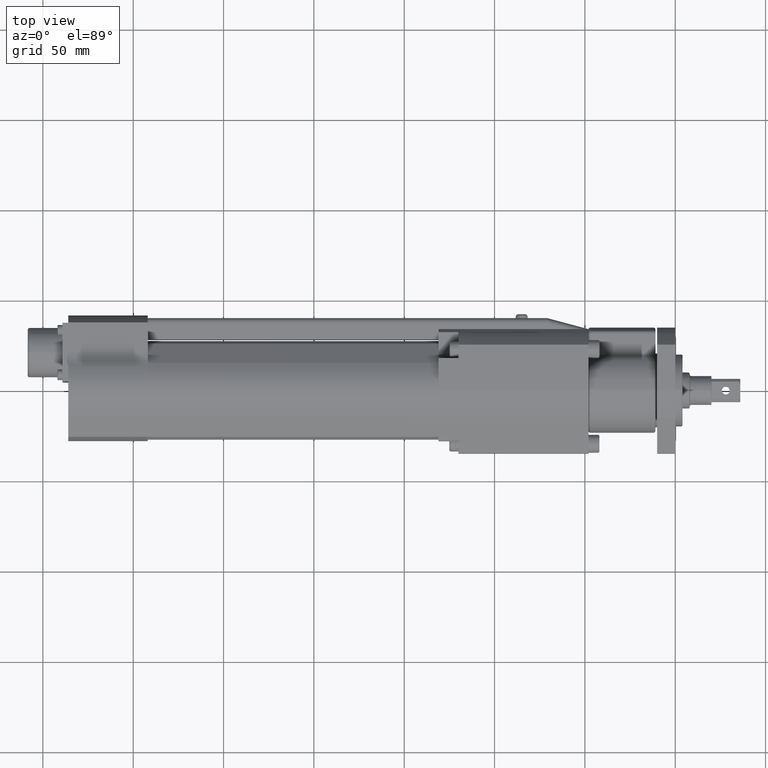
[diagram: clean part render]
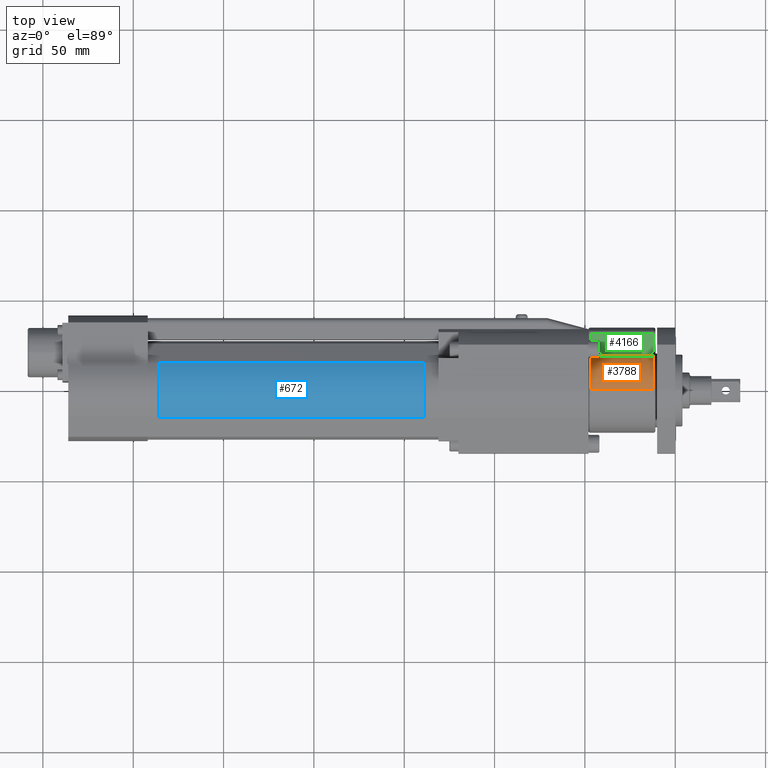
[diagram: same view with three faces highlighted in distinct colors, each labeled with its STEP entity id]
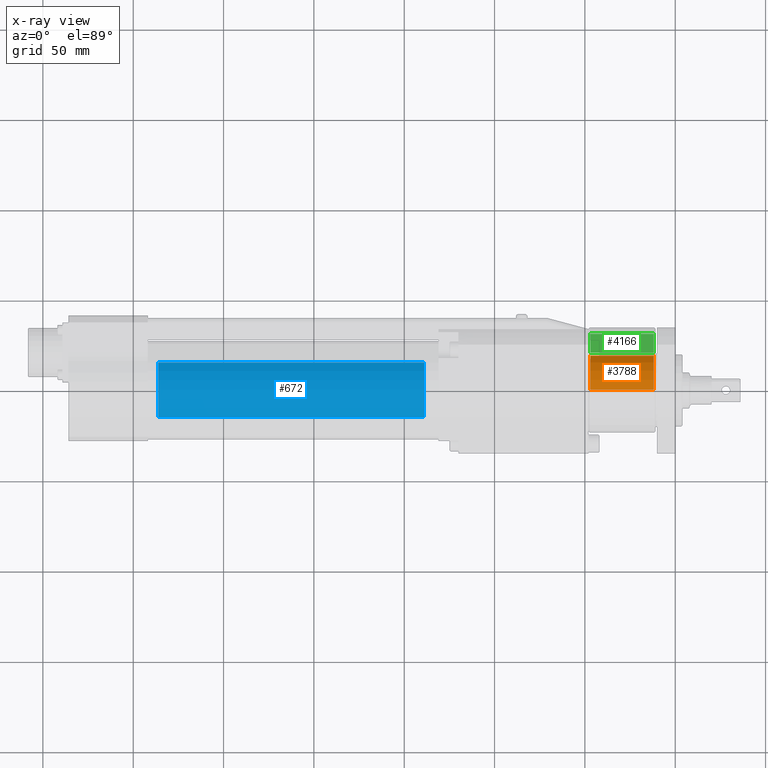
[diagram: x-ray of the same camera — body ghosted, the three highlighted faces saturated]
A machine part, top view with three faces highlighted in distinct colors.
The next image is the same camera in x-ray (body ghosted, the three faces saturated) — at least one of them is partly hidden behind the body in this view.
Their STEP definitions:

[orange] entity #3788 — the highlighted cylindrical surface (partial cylindrical patch) has radius 23.5 mm, axis along (1, -0, -0).
#776 = ORIENTED_EDGE ( 'NONE', *, *, #4797, .T. ) ;
#1024 = ORIENTED_EDGE ( 'NONE', *, *, #6383, .T. ) ;
#1138 = ORIENTED_EDGE ( 'NONE', *, *, #5161, .T. ) ;
#1950 = CIRCLE ( 'NONE', #7368, 23.50000000000000000 ) ;
#2595 = EDGE_CURVE ( 'NONE', #7331, #6555, #1950, .T. ) ;
#2702 = CARTESIAN_POINT ( 'NONE',  ( -47.00000000000000000, 0.0000000000000000000, 0.0000000000000000000 ) ) ;
#2726 = EDGE_LOOP ( 'NONE', ( #5935, #1024, #776, #1138 ) ) ;
#3408 = CARTESIAN_POINT ( 'NONE',  ( -47.00000000000000000, 19.00421097025804300, 13.82352941176470300 ) ) ;
#3433 = DIRECTION ( 'NONE',  ( 0.0000000000000000000, 8.881784197001252300E-016, 1.000000000000000000 ) ) ;
#3527 = DIRECTION ( 'NONE',  ( 0.0000000000000000000, 0.0000000000000000000, -1.000000000000000000 ) ) ;
#3757 = VECTOR ( 'NONE', #7255, 1000.000000000000000 ) ;
#3788 = ADVANCED_FACE ( 'NONE', ( #5408 ), #8349, .T. ) ;
#4797 = EDGE_CURVE ( 'NONE', #6491, #6052, #6250, .T. ) ;
#4864 = DIRECTION ( 'NONE',  ( 0.0000000000000000000, 0.0000000000000000000, 1.000000000000000000 ) ) ;
#5013 = VECTOR ( 'NONE', #6713, 1000.000000000000000 ) ;
#5161 = EDGE_CURVE ( 'NONE', #6052, #7331, #6925, .T. ) ;
#5263 = CARTESIAN_POINT ( 'NONE',  ( -11.99999999999999600, 2.877919977996280300E-015, 23.50000000000000000 ) ) ;
#5288 = CARTESIAN_POINT ( 'NONE',  ( -48.00000000000000000, 19.00421097025804300, 13.82352941176470300 ) ) ;
#5408 = FACE_OUTER_BOUND ( 'NONE', #2726, .T. ) ;
#5935 = ORIENTED_EDGE ( 'NONE', *, *, #2595, .T. ) ;
#6052 = VERTEX_POINT ( 'NONE', #6334 ) ;
#6250 = CIRCLE ( 'NONE', #6707, 23.50000000000000000 ) ;
#6334 = CARTESIAN_POINT ( 'NONE',  ( -11.99999999999999600, 19.00421097025804300, 13.82352941176470300 ) ) ;
#6383 = EDGE_CURVE ( 'NONE', #6555, #6491, #7600, .T. ) ;
#6385 = CARTESIAN_POINT ( 'NONE',  ( -48.00000000000000000, 0.0000000000000000000, 0.0000000000000000000 ) ) ;
#6491 = VERTEX_POINT ( 'NONE', #5263 ) ;
#6555 = VERTEX_POINT ( 'NONE', #6809 ) ;
#6707 = AXIS2_PLACEMENT_3D ( 'NONE', #9135, #9187, #4864 ) ;
#6713 = DIRECTION ( 'NONE',  ( -1.000000000000000000, 0.0000000000000000000, 0.0000000000000000000 ) ) ;
#6809 = CARTESIAN_POINT ( 'NONE',  ( -47.00000000000000000, 2.877919977996280300E-015, 23.50000000000000000 ) ) ;
#6925 = LINE ( 'NONE', #5288, #5013 ) ;
#7255 = DIRECTION ( 'NONE',  ( 1.000000000000000000, -0.0000000000000000000, -0.0000000000000000000 ) ) ;
#7331 = VERTEX_POINT ( 'NONE', #3408 ) ;
#7368 = AXIS2_PLACEMENT_3D ( 'NONE', #2702, #7762, #3433 ) ;
#7430 = AXIS2_PLACEMENT_3D ( 'NONE', #6385, #7855, #3527 ) ;
#7600 = LINE ( 'NONE', #8009, #3757 ) ;
#7762 = DIRECTION ( 'NONE',  ( 1.000000000000000000, -0.0000000000000000000, -0.0000000000000000000 ) ) ;
#7855 = DIRECTION ( 'NONE',  ( 1.000000000000000000, -0.0000000000000000000, -0.0000000000000000000 ) ) ;
#8009 = CARTESIAN_POINT ( 'NONE',  ( -48.00000000000000000, 2.877919977996280300E-015, 23.50000000000000000 ) ) ;
#8349 = CYLINDRICAL_SURFACE ( 'NONE', #7430, 23.50000000000000000 ) ;
#9135 = CARTESIAN_POINT ( 'NONE',  ( -11.99999999999999600, 0.0000000000000000000, 0.0000000000000000000 ) ) ;
#9187 = DIRECTION ( 'NONE',  ( -1.000000000000000000, 0.0000000000000000000, 0.0000000000000000000 ) ) ;

[blue] entity #672 — the highlighted cylindrical surface (partial cylindrical patch) has radius 24.5 mm, axis along (1, -0, -0).
#125 = DIRECTION ( 'NONE',  ( -1.000000000000000000, 0.0000000000000000000, 0.0000000000000000000 ) ) ;
#127 = ORIENTED_EDGE ( 'NONE', *, *, #5010, .T. ) ;
#424 = LINE ( 'NONE', #2423, #1862 ) ;
#668 = VERTEX_POINT ( 'NONE', #2818 ) ;
#672 = ADVANCED_FACE ( 'NONE', ( #7265 ), #8716, .T. ) ;
#1093 = CIRCLE ( 'NONE', #5566, 24.50000000000000000 ) ;
#1569 = VERTEX_POINT ( 'NONE', #1766 ) ;
#1720 = DIRECTION ( 'NONE',  ( 1.000000000000000000, -0.0000000000000000000, -0.0000000000000000000 ) ) ;
#1766 = CARTESIAN_POINT ( 'NONE',  ( -286.0000000000000600, -15.08370614547866000, 19.30626346336466500 ) ) ;
#1862 = VECTOR ( 'NONE', #1720, 1000.000000000000000 ) ;
#2029 = LINE ( 'NONE', #8192, #8998 ) ;
#2423 = CARTESIAN_POINT ( 'NONE',  ( -286.0000000000000600, 15.08370614547865600, 19.30626346336466500 ) ) ;
#2700 = CARTESIAN_POINT ( 'NONE',  ( -286.0000000000000600, 0.0000000000000000000, 0.0000000000000000000 ) ) ;
#2705 = ORIENTED_EDGE ( 'NONE', *, *, #4620, .F. ) ;
#2818 = CARTESIAN_POINT ( 'NONE',  ( -286.0000000000000600, 15.08370614547865600, 19.30626346336466500 ) ) ;
#2848 = DIRECTION ( 'NONE',  ( 0.0000000000000000000, 0.0000000000000000000, -1.000000000000000000 ) ) ;
#3039 = ORIENTED_EDGE ( 'NONE', *, *, #8062, .T. ) ;
#3432 = DIRECTION ( 'NONE',  ( 0.0000000000000000000, 0.0000000000000000000, 1.000000000000000000 ) ) ;
#4283 = EDGE_CURVE ( 'NONE', #1569, #668, #5039, .T. ) ;
#4289 = DIRECTION ( 'NONE',  ( 1.000000000000000000, -0.0000000000000000000, -0.0000000000000000000 ) ) ;
#4388 = CARTESIAN_POINT ( 'NONE',  ( -139.0000000000000000, 0.0000000000000000000, 0.0000000000000000000 ) ) ;
#4620 = EDGE_CURVE ( 'NONE', #668, #5814, #424, .T. ) ;
#5010 = EDGE_CURVE ( 'NONE', #8427, #5814, #1093, .T. ) ;
#5039 = CIRCLE ( 'NONE', #5145, 24.50000000000000000 ) ;
#5120 = DIRECTION ( 'NONE',  ( 0.0000000000000000000, 0.0000000000000000000, 1.000000000000000000 ) ) ;
#5145 = AXIS2_PLACEMENT_3D ( 'NONE', #2700, #7761, #3432 ) ;
#5149 = AXIS2_PLACEMENT_3D ( 'NONE', #7903, #4289, #2848 ) ;
#5566 = AXIS2_PLACEMENT_3D ( 'NONE', #4388, #125, #5120 ) ;
#5814 = VERTEX_POINT ( 'NONE', #7777 ) ;
#6305 = EDGE_LOOP ( 'NONE', ( #127, #2705, #8627, #3039 ) ) ;
#7265 = FACE_OUTER_BOUND ( 'NONE', #6305, .T. ) ;
#7315 = CARTESIAN_POINT ( 'NONE',  ( -139.0000000000000000, -15.08370614547866000, 19.30626346336466500 ) ) ;
#7761 = DIRECTION ( 'NONE',  ( -1.000000000000000000, 0.0000000000000000000, 0.0000000000000000000 ) ) ;
#7777 = CARTESIAN_POINT ( 'NONE',  ( -139.0000000000000000, 15.08370614547865600, 19.30626346336466500 ) ) ;
#7903 = CARTESIAN_POINT ( 'NONE',  ( -286.0000000000000600, 0.0000000000000000000, 0.0000000000000000000 ) ) ;
#8062 = EDGE_CURVE ( 'NONE', #1569, #8427, #2029, .T. ) ;
#8160 = DIRECTION ( 'NONE',  ( 1.000000000000000000, -0.0000000000000000000, -0.0000000000000000000 ) ) ;
#8192 = CARTESIAN_POINT ( 'NONE',  ( -286.0000000000000600, -15.08370614547866000, 19.30626346336466500 ) ) ;
#8427 = VERTEX_POINT ( 'NONE', #7315 ) ;
#8627 = ORIENTED_EDGE ( 'NONE', *, *, #4283, .F. ) ;
#8716 = CYLINDRICAL_SURFACE ( 'NONE', #5149, 24.50000000000000000 ) ;
#8998 = VECTOR ( 'NONE', #8160, 1000.000000000000000 ) ;

[green] entity #4166 — the highlighted planar face has unit normal (0, -0, -1).
#428 = DIRECTION ( 'NONE',  ( 1.000000000000000000, -0.0000000000000000000, -0.0000000000000000000 ) ) ;
#659 = VERTEX_POINT ( 'NONE', #7141 ) ;
#723 = CARTESIAN_POINT ( 'NONE',  ( -47.00000000000000000, 20.62159062730128400, 13.00000000000000000 ) ) ;
#734 = LINE ( 'NONE', #6619, #5972 ) ;
#851 = DIRECTION ( 'NONE',  ( 0.0000000000000000000, 1.000000000000000000, -2.685458980225336700E-016 ) ) ;
#871 = LINE ( 'NONE', #4189, #6359 ) ;
#1011 = CARTESIAN_POINT ( 'NONE',  ( -47.00000000000000000, 31.11269837220810800, 12.99999999999999600 ) ) ;
#1044 = PLANE ( 'NONE',  #8214 ) ;
#1596 = DIRECTION ( 'NONE',  ( -1.000000000000000000, -0.0000000000000000000, -0.0000000000000000000 ) ) ;
#1746 = DIRECTION ( 'NONE',  ( 0.0000000000000000000, 1.000000000000000000, -2.685458980225336700E-016 ) ) ;
#1779 = EDGE_CURVE ( 'NONE', #5618, #6295, #871, .T. ) ;
#1823 = CARTESIAN_POINT ( 'NONE',  ( -10.99999999999999600, 20.62159062730128400, 13.00000000000000000 ) ) ;
#2568 = LINE ( 'NONE', #1823, #6172 ) ;
#2778 = DIRECTION ( 'NONE',  ( -0.0000000000000000000, -1.000000000000000000, 2.685458980225336700E-016 ) ) ;
#2816 = ORIENTED_EDGE ( 'NONE', *, *, #3487, .T. ) ;
#3129 = CARTESIAN_POINT ( 'NONE',  ( -11.99999999999999600, 31.11269837220810800, 12.99999999999999600 ) ) ;
#3487 = EDGE_CURVE ( 'NONE', #7734, #5618, #734, .T. ) ;
#4166 = ADVANCED_FACE ( 'NONE', ( #4168 ), #1044, .F. ) ;
#4168 = FACE_OUTER_BOUND ( 'NONE', #6608, .T. ) ;
#4189 = CARTESIAN_POINT ( 'NONE',  ( -47.00000000000000000, 20.62159062730128800, 13.00000000000000000 ) ) ;
#4541 = ORIENTED_EDGE ( 'NONE', *, *, #1779, .T. ) ;
#4583 = CARTESIAN_POINT ( 'NONE',  ( -48.00000000000000000, 32.49615361854385800, 12.99999999999999600 ) ) ;
#4832 = ORIENTED_EDGE ( 'NONE', *, *, #8168, .T. ) ;
#5618 = VERTEX_POINT ( 'NONE', #1011 ) ;
#5855 = LINE ( 'NONE', #6544, #9235 ) ;
#5972 = VECTOR ( 'NONE', #1596, 1000.000000000000000 ) ;
#6035 = DIRECTION ( 'NONE',  ( 0.0000000000000000000, -2.685458980225336700E-016, -1.000000000000000000 ) ) ;
#6172 = VECTOR ( 'NONE', #428, 1000.000000000000000 ) ;
#6295 = VERTEX_POINT ( 'NONE', #723 ) ;
#6359 = VECTOR ( 'NONE', #2778, 1000.000000000000000 ) ;
#6544 = CARTESIAN_POINT ( 'NONE',  ( -11.99999999999999600, 32.49615361854385800, 12.99999999999999600 ) ) ;
#6608 = EDGE_LOOP ( 'NONE', ( #2816, #4541, #4832, #7349 ) ) ;
#6619 = CARTESIAN_POINT ( 'NONE',  ( -48.00000000000000000, 31.11269837220810800, 12.99999999999999600 ) ) ;
#7141 = CARTESIAN_POINT ( 'NONE',  ( -11.99999999999999600, 20.62159062730128400, 13.00000000000000000 ) ) ;
#7349 = ORIENTED_EDGE ( 'NONE', *, *, #9175, .T. ) ;
#7734 = VERTEX_POINT ( 'NONE', #3129 ) ;
#8168 = EDGE_CURVE ( 'NONE', #6295, #659, #2568, .T. ) ;
#8214 = AXIS2_PLACEMENT_3D ( 'NONE', #4583, #6035, #1746 ) ;
#9175 = EDGE_CURVE ( 'NONE', #659, #7734, #5855, .T. ) ;
#9235 = VECTOR ( 'NONE', #851, 1000.000000000000000 ) ;